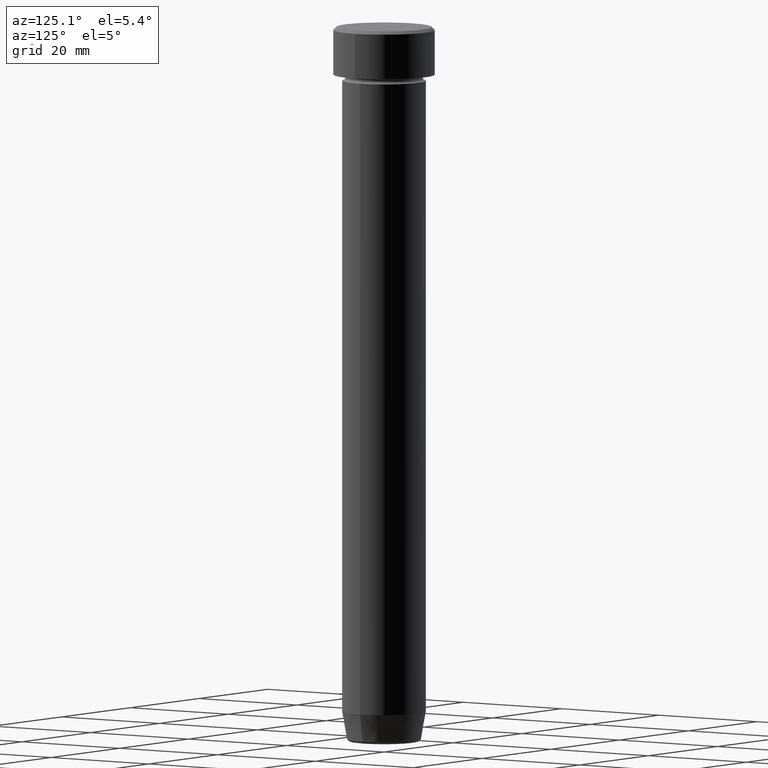
[diagram: clean part render]
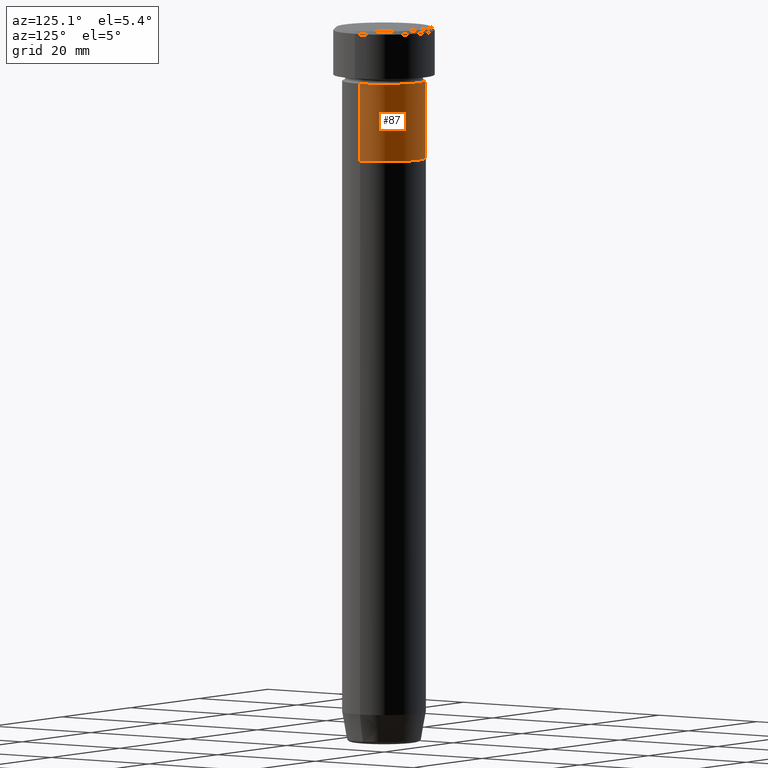
[diagram: same view with one face highlighted and labeled with its STEP entity id]
A machine part, auxiliary view. The second image highlights one B-rep face of the part: STEP entity #87.
In plain terms, the highlighted cylindrical surface (partial cylindrical patch) has radius 7 mm, axis along (-0, -0, 1).
Its self-contained STEP definition (entity closure, byte-faithful):
#6 = DIRECTION ( 'NONE',  ( 1.000000000000000000, 0.000000000000000000, 0.000000000000000000 ) ) ;
#12 = DIRECTION ( 'NONE',  ( -0.000000000000000000, -0.000000000000000000, 1.000000000000000000 ) ) ;
#23 = CARTESIAN_POINT ( 'NONE',  ( 6.999999999999999112, 0.000000000000000000, 0.000000000000000000 ) ) ;
#28 = EDGE_CURVE ( 'NONE', #440, #544, #232, .T. ) ;
#87 = ADVANCED_FACE ( 'NONE', ( #422 ), #138, .T. ) ;
#92 = VECTOR ( 'NONE', #305, 1000.000000000000000 ) ;
#93 = ORIENTED_EDGE ( 'NONE', *, *, #150, .T. ) ;
#109 = DIRECTION ( 'NONE',  ( -0.000000000000000000, -0.000000000000000000, 1.000000000000000000 ) ) ;
#115 = CARTESIAN_POINT ( 'NONE',  ( -6.999999999999999112, 8.572527594031472204E-16, -22.00000000000000000 ) ) ;
#120 = LINE ( 'NONE', #485, #92 ) ;
#138 = CYLINDRICAL_SURFACE ( 'NONE', #470, 6.999999999999999112 ) ;
#150 = EDGE_CURVE ( 'NONE', #360, #223, #353, .T. ) ;
#156 = EDGE_LOOP ( 'NONE', ( #93, #585, #498, #254 ) ) ;
#162 = AXIS2_PLACEMENT_3D ( 'NONE', #249, #389, #529 ) ;
#169 = EDGE_CURVE ( 'NONE', #223, #544, #120, .T. ) ;
#190 = EDGE_CURVE ( 'NONE', #360, #440, #436, .T. ) ;
#194 = CARTESIAN_POINT ( 'NONE',  ( 0.000000000000000000, 0.000000000000000000, -9.000000000000001776 ) ) ;
#223 = VERTEX_POINT ( 'NONE', #115 ) ;
#231 = AXIS2_PLACEMENT_3D ( 'NONE', #194, #12, #6 ) ;
#232 = CIRCLE ( 'NONE', #231, 7.000000000000000000 ) ;
#249 = CARTESIAN_POINT ( 'NONE',  ( 0.000000000000000000, 0.000000000000000000, -22.00000000000000000 ) ) ;
#254 = ORIENTED_EDGE ( 'NONE', *, *, #190, .F. ) ;
#292 = DIRECTION ( 'NONE',  ( -0.000000000000000000, -0.000000000000000000, 1.000000000000000000 ) ) ;
#305 = DIRECTION ( 'NONE',  ( -0.000000000000000000, -0.000000000000000000, 1.000000000000000000 ) ) ;
#353 = CIRCLE ( 'NONE', #162, 6.999999999999999112 ) ;
#360 = VERTEX_POINT ( 'NONE', #426 ) ;
#384 = VECTOR ( 'NONE', #109, 1000.000000000000000 ) ;
#389 = DIRECTION ( 'NONE',  ( -0.000000000000000000, -0.000000000000000000, 1.000000000000000000 ) ) ;
#418 = CARTESIAN_POINT ( 'NONE',  ( 0.000000000000000000, 0.000000000000000000, 0.000000000000000000 ) ) ;
#422 = FACE_OUTER_BOUND ( 'NONE', #156, .T. ) ;
#426 = CARTESIAN_POINT ( 'NONE',  ( 6.999999999999999112, 0.000000000000000000, -22.00000000000000000 ) ) ;
#436 = LINE ( 'NONE', #23, #384 ) ;
#440 = VERTEX_POINT ( 'NONE', #525 ) ;
#455 = CARTESIAN_POINT ( 'NONE',  ( -7.000000000000000888, 8.572527594031474176E-16, -9.000000000000001776 ) ) ;
#470 = AXIS2_PLACEMENT_3D ( 'NONE', #418, #292, #514 ) ;
#485 = CARTESIAN_POINT ( 'NONE',  ( -6.999999999999999112, 8.572527594031472204E-16, 0.000000000000000000 ) ) ;
#498 = ORIENTED_EDGE ( 'NONE', *, *, #28, .F. ) ;
#514 = DIRECTION ( 'NONE',  ( 1.000000000000000000, 0.000000000000000000, 0.000000000000000000 ) ) ;
#525 = CARTESIAN_POINT ( 'NONE',  ( 7.000000000000000000, 0.000000000000000000, -9.000000000000001776 ) ) ;
#529 = DIRECTION ( 'NONE',  ( 1.000000000000000000, 0.000000000000000000, 0.000000000000000000 ) ) ;
#544 = VERTEX_POINT ( 'NONE', #455 ) ;
#585 = ORIENTED_EDGE ( 'NONE', *, *, #169, .T. ) ;